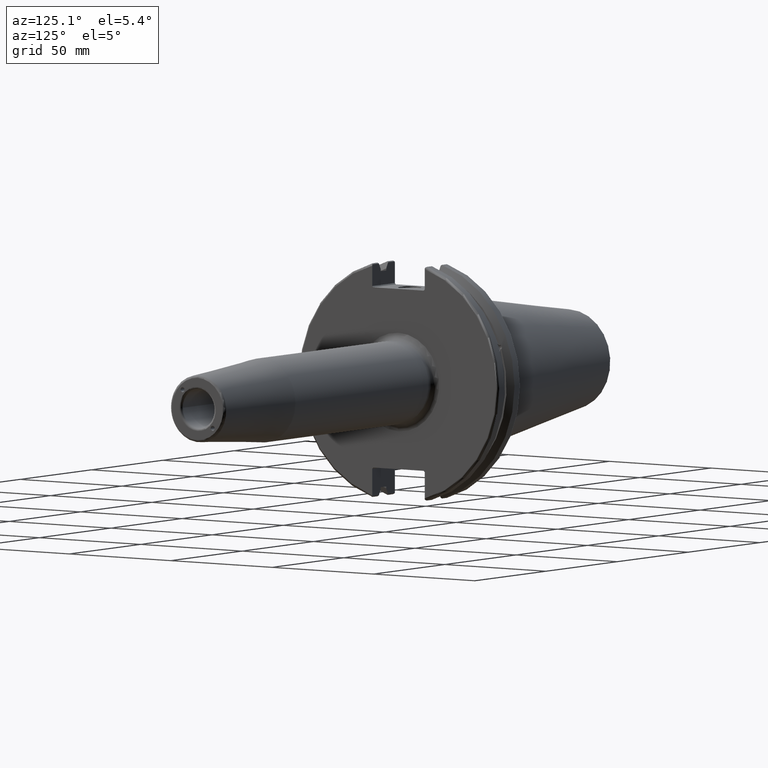
[diagram: clean part render]
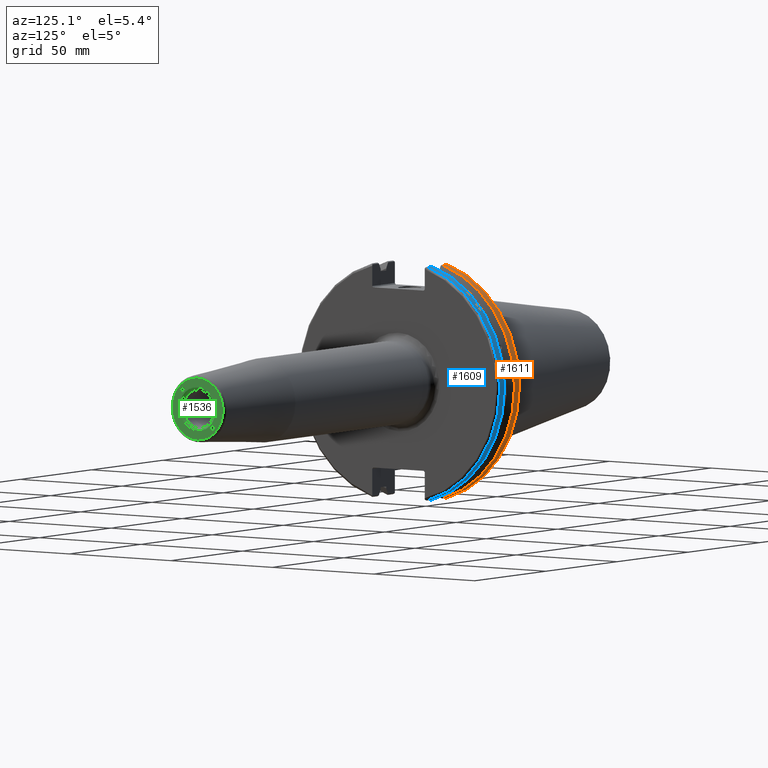
[diagram: same view with three faces highlighted in distinct colors, each labeled with its STEP entity id]
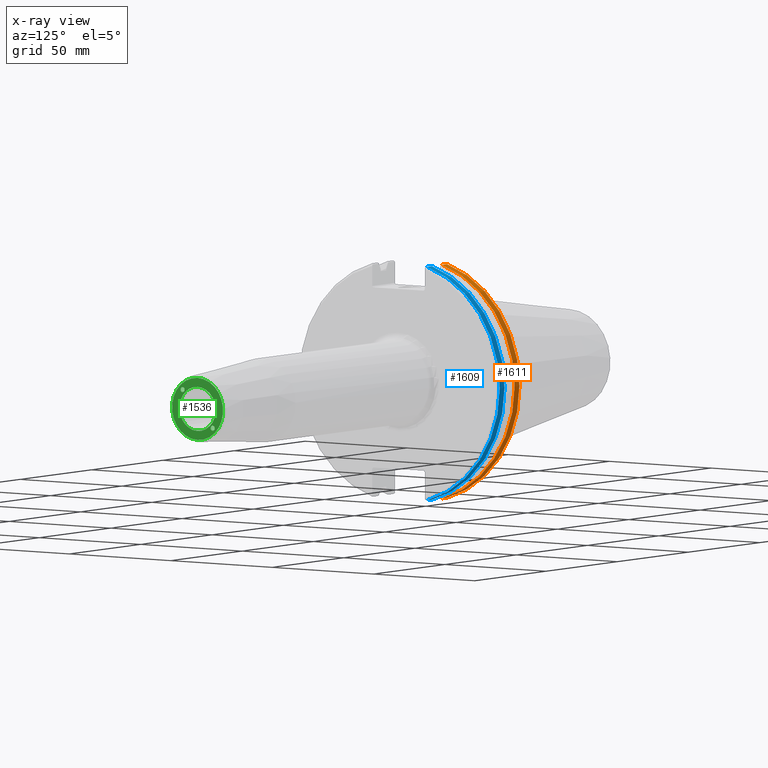
[diagram: x-ray of the same camera — body ghosted, the three highlighted faces saturated]
A machine part, auxiliary view with three faces highlighted in distinct colors.
The next image is the same camera in x-ray (body ghosted, the three faces saturated) — at least one of them is partly hidden behind the body in this view.
Their STEP definitions:

[orange] entity #1611 — the highlighted cylindrical surface (partial cylindrical patch) has radius 49.2125 mm, axis along (1, 0, 0).
#162=LINE('',#3147,#260);
#177=LINE('',#3200,#275);
#260=VECTOR('',#2161,10.);
#275=VECTOR('',#2220,10.);
#306=CYLINDRICAL_SURFACE('',#1800,49.2125);
#450=FACE_OUTER_BOUND('',#562,.T.);
#562=EDGE_LOOP('',(#1455,#1456,#1457,#1458));
#621=CIRCLE('',#1731,49.2125);
#642=CIRCLE('',#1776,49.2125);
#748=VERTEX_POINT('',#2872);
#749=VERTEX_POINT('',#2876);
#801=VERTEX_POINT('',#3121);
#802=VERTEX_POINT('',#3130);
#933=EDGE_CURVE('',#748,#749,#621,.T.);
#1011=EDGE_CURVE('',#801,#802,#642,.T.);
#1014=EDGE_CURVE('',#802,#748,#162,.T.);
#1038=EDGE_CURVE('',#749,#801,#177,.T.);
#1455=ORIENTED_EDGE('',*,*,#1011,.F.);
#1456=ORIENTED_EDGE('',*,*,#1038,.F.);
#1457=ORIENTED_EDGE('',*,*,#933,.F.);
#1458=ORIENTED_EDGE('',*,*,#1014,.F.);
#1611=ADVANCED_FACE('',(#450),#306,.T.);
#1731=AXIS2_PLACEMENT_3D('',#2877,#2033,#2034);
#1776=AXIS2_PLACEMENT_3D('',#3131,#2157,#2158);
#1800=AXIS2_PLACEMENT_3D('',#3201,#2221,#2222);
#2033=DIRECTION('center_axis',(1.,0.,0.));
#2034=DIRECTION('ref_axis',(0.,0.,-1.));
#2157=DIRECTION('center_axis',(-1.,0.,0.));
#2158=DIRECTION('ref_axis',(0.,1.,-6.12323399573677E-17));
#2161=DIRECTION('',(1.,0.,0.));
#2220=DIRECTION('',(-1.,0.,0.));
#2221=DIRECTION('center_axis',(1.,0.,0.));
#2222=DIRECTION('ref_axis',(0.,1.,0.));
#2872=CARTESIAN_POINT('',(7.60799096595127,13.4317035994433,-47.3440544806494));
#2876=CARTESIAN_POINT('',(7.60799096595127,13.4317035994433,47.3440544806494));
#2877=CARTESIAN_POINT('Origin',(7.60799096595127,0.,0.));
#3121=CARTESIAN_POINT('',(4.175,13.4317035994433,47.3440544806494));
#3130=CARTESIAN_POINT('',(4.175,13.4317035994433,-47.3440544806494));
#3131=CARTESIAN_POINT('Origin',(4.175,0.,0.));
#3147=CARTESIAN_POINT('',(5.39149548297563,13.4317035994433,-47.3440544806494));
#3200=CARTESIAN_POINT('',(5.39149548297563,13.4317035994433,47.3440544806494));
#3201=CARTESIAN_POINT('Origin',(5.39149548297563,0.,0.));

[blue] entity #1609 — the highlighted cylindrical surface (partial cylindrical patch) has radius 49.2125 mm, axis along (1, 0, 0).
#148=LINE('',#3001,#246);
#176=LINE('',#3193,#274);
#246=VECTOR('',#2119,10.);
#274=VECTOR('',#2213,10.);
#305=CYLINDRICAL_SURFACE('',#1797,49.2125);
#448=FACE_OUTER_BOUND('',#560,.T.);
#560=EDGE_LOOP('',(#1447,#1448,#1449,#1450));
#638=CIRCLE('',#1762,49.2125);
#649=CIRCLE('',#1798,49.2125);
#780=VERTEX_POINT('',#2975);
#781=VERTEX_POINT('',#2984);
#783=VERTEX_POINT('',#2997);
#812=VERTEX_POINT('',#3192);
#975=EDGE_CURVE('',#780,#781,#638,.T.);
#979=EDGE_CURVE('',#783,#780,#148,.T.);
#1035=EDGE_CURVE('',#781,#812,#176,.T.);
#1037=EDGE_CURVE('',#783,#812,#649,.T.);
#1447=ORIENTED_EDGE('',*,*,#975,.F.);
#1448=ORIENTED_EDGE('',*,*,#979,.F.);
#1449=ORIENTED_EDGE('',*,*,#1037,.T.);
#1450=ORIENTED_EDGE('',*,*,#1035,.F.);
#1609=ADVANCED_FACE('',(#448),#305,.T.);
#1762=AXIS2_PLACEMENT_3D('',#2985,#2114,#2115);
#1797=AXIS2_PLACEMENT_3D('',#3197,#2214,#2215);
#1798=AXIS2_PLACEMENT_3D('',#3198,#2216,#2217);
#2114=DIRECTION('center_axis',(1.,0.,0.));
#2115=DIRECTION('ref_axis',(0.,1.,-6.12323399573677E-17));
#2119=DIRECTION('',(1.,0.,0.));
#2213=DIRECTION('',(-1.,0.,0.));
#2214=DIRECTION('center_axis',(1.,0.,0.));
#2215=DIRECTION('ref_axis',(0.,1.,0.));
#2216=DIRECTION('center_axis',(1.,0.,0.));
#2217=DIRECTION('ref_axis',(0.,0.,-1.));
#2975=CARTESIAN_POINT('',(18.05,13.4317035994433,-47.3440544806494));
#2984=CARTESIAN_POINT('',(18.05,13.4317035994433,47.3440544806494));
#2985=CARTESIAN_POINT('Origin',(18.05,0.,0.));
#2997=CARTESIAN_POINT('',(14.6602090340487,13.4317035994433,-47.3440544806494));
#3001=CARTESIAN_POINT('',(16.8551045170244,13.4317035994433,-47.3440544806494));
#3192=CARTESIAN_POINT('',(14.6602090340487,13.4317035994433,47.3440544806494));
#3193=CARTESIAN_POINT('',(16.8551045170244,13.4317035994433,47.3440544806494));
#3197=CARTESIAN_POINT('Origin',(16.8551045170244,0.,0.));
#3198=CARTESIAN_POINT('Origin',(14.6602090340487,0.,0.));

[green] entity #1536 — the highlighted planar face has unit normal (1, 0, 0).
#311=FACE_BOUND('',#468,.T.);
#312=FACE_BOUND('',#469,.T.);
#313=FACE_BOUND('',#470,.T.);
#333=ELLIPSE('',#1657,1.00015232804391,1.);
#334=ELLIPSE('',#1658,1.00015232804391,1.);
#337=PLANE('',#1655);
#375=FACE_OUTER_BOUND('',#467,.T.);
#467=EDGE_LOOP('',(#1059));
#468=EDGE_LOOP('',(#1060));
#469=EDGE_LOOP('',(#1061));
#470=EDGE_LOOP('',(#1062));
#583=CIRCLE('',#1654,8.9375);
#584=CIRCLE('',#1656,12.5756095083418);
#662=VERTEX_POINT('',#2284);
#663=VERTEX_POINT('',#2288);
#664=VERTEX_POINT('',#2290);
#665=VERTEX_POINT('',#2292);
#821=EDGE_CURVE('',#662,#662,#583,.T.);
#822=EDGE_CURVE('',#663,#663,#584,.T.);
#823=EDGE_CURVE('',#664,#664,#333,.T.);
#824=EDGE_CURVE('',#665,#665,#334,.T.);
#1059=ORIENTED_EDGE('',*,*,#822,.F.);
#1060=ORIENTED_EDGE('',*,*,#823,.T.);
#1061=ORIENTED_EDGE('',*,*,#824,.T.);
#1062=ORIENTED_EDGE('',*,*,#821,.F.);
#1536=ADVANCED_FACE('',(#375,#311,#312,#313),#337,.T.);
#1654=AXIS2_PLACEMENT_3D('',#2286,#1836,#1837);
#1655=AXIS2_PLACEMENT_3D('',#2287,#1838,#1839);
#1656=AXIS2_PLACEMENT_3D('',#2289,#1840,#1841);
#1657=AXIS2_PLACEMENT_3D('',#2291,#1842,#1843);
#1658=AXIS2_PLACEMENT_3D('',#2293,#1844,#1845);
#1836=DIRECTION('center_axis',(1.,0.,0.));
#1837=DIRECTION('ref_axis',(0.,-1.,1.83697019872103E-16));
#1838=DIRECTION('center_axis',(1.,0.,0.));
#1839=DIRECTION('ref_axis',(0.,0.,-1.));
#1840=DIRECTION('center_axis',(-1.,0.,0.));
#1841=DIRECTION('ref_axis',(0.,-1.,1.83697019872103E-16));
#1842=DIRECTION('center_axis',(-1.,0.,0.));
#1843=DIRECTION('ref_axis',(0.,-0.707106781186438,0.707106781186658));
#1844=DIRECTION('center_axis',(-1.,0.,0.));
#1845=DIRECTION('ref_axis',(0.,0.707106781186438,-0.707106781186657));
#2284=CARTESIAN_POINT('',(160.,-1.09452807673795E-15,8.9375));
#2286=CARTESIAN_POINT('Origin',(160.,0.,0.));
#2287=CARTESIAN_POINT('Origin',(160.,7.93750000000001,0.));
#2288=CARTESIAN_POINT('',(160.,-1.54006799317178E-15,12.5756095083418));
#2289=CARTESIAN_POINT('Origin',(160.,0.,0.));
#2290=CARTESIAN_POINT('',(160.,-6.42454503553654,7.42446887441528));
#2291=CARTESIAN_POINT('Origin',(160.,-7.42462120245875,7.42462120245875));
#2292=CARTESIAN_POINT('',(160.,6.42454503553654,-7.42446887441528));
#2293=CARTESIAN_POINT('Origin',(160.,7.42462120245875,-7.42462120245875));